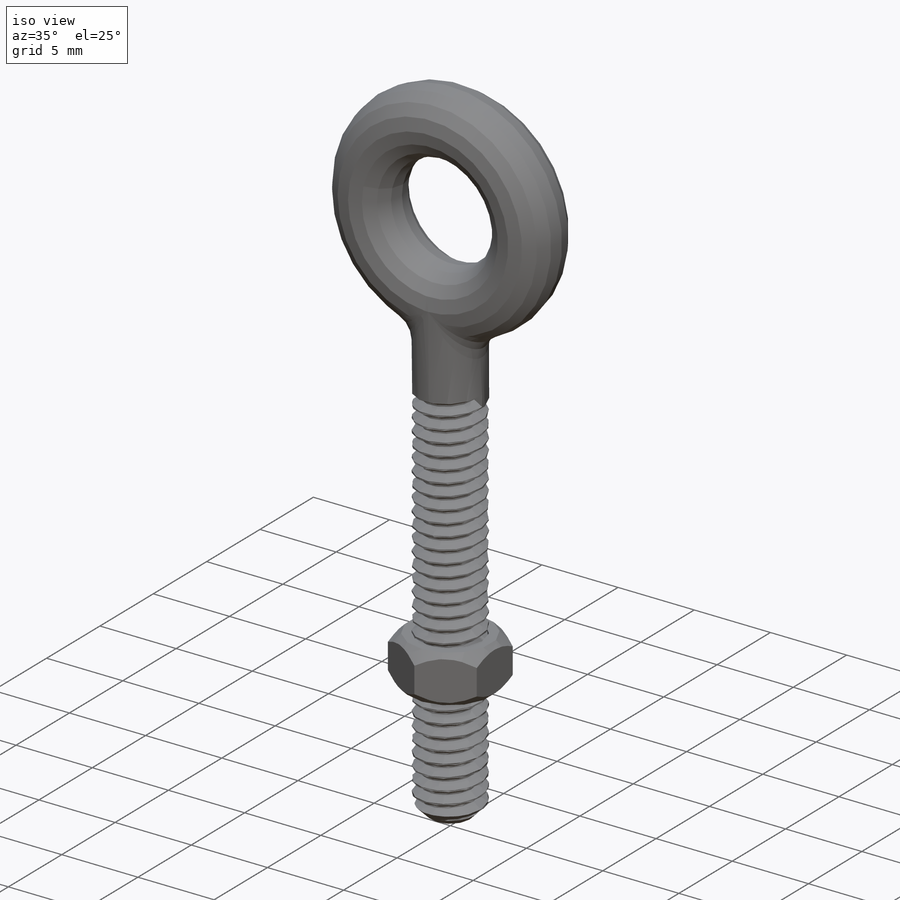
[diagram: iso view]
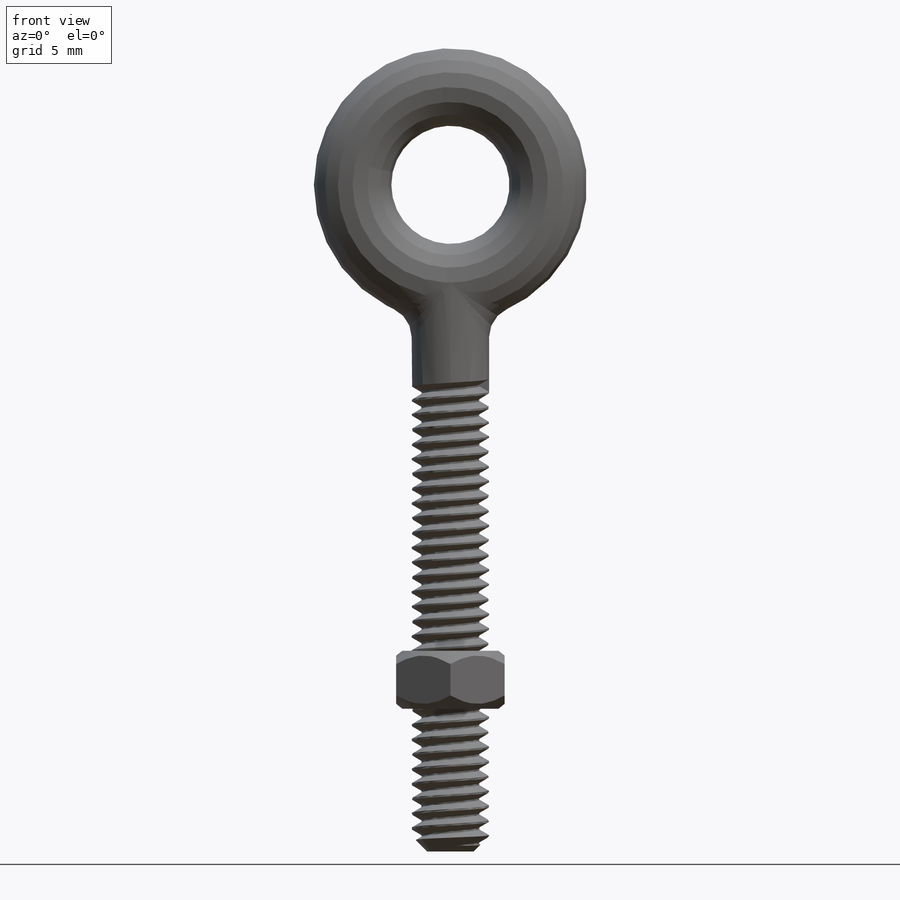
[diagram: front view]
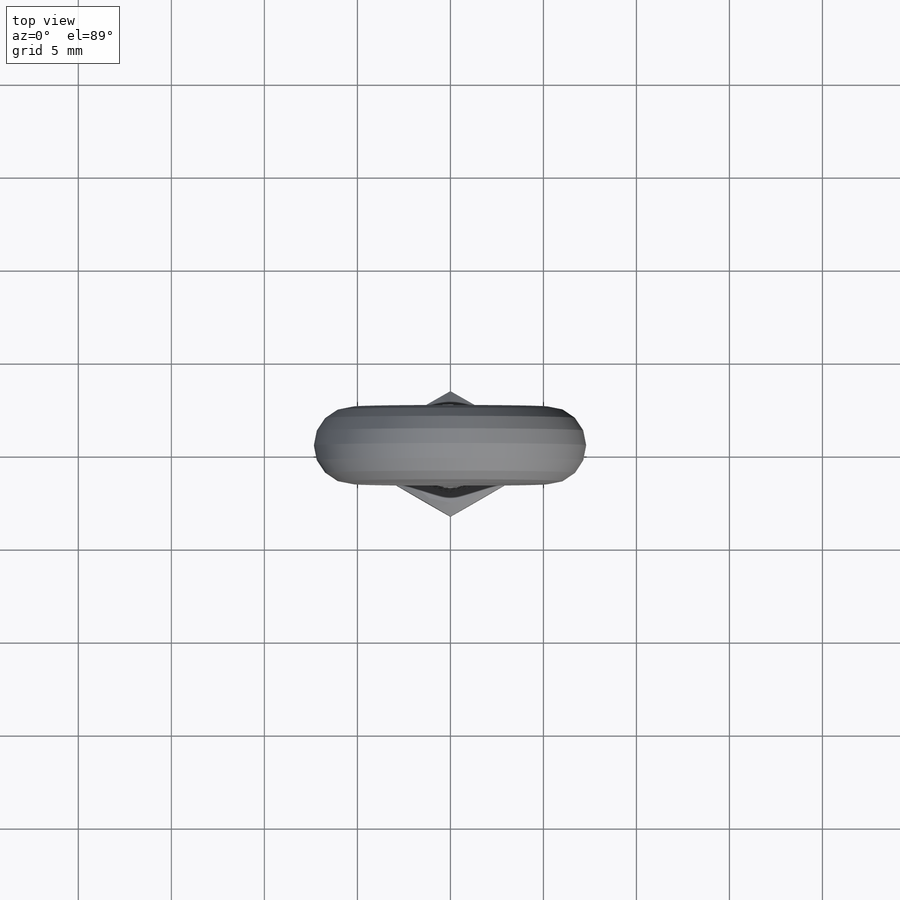
[diagram: top view]
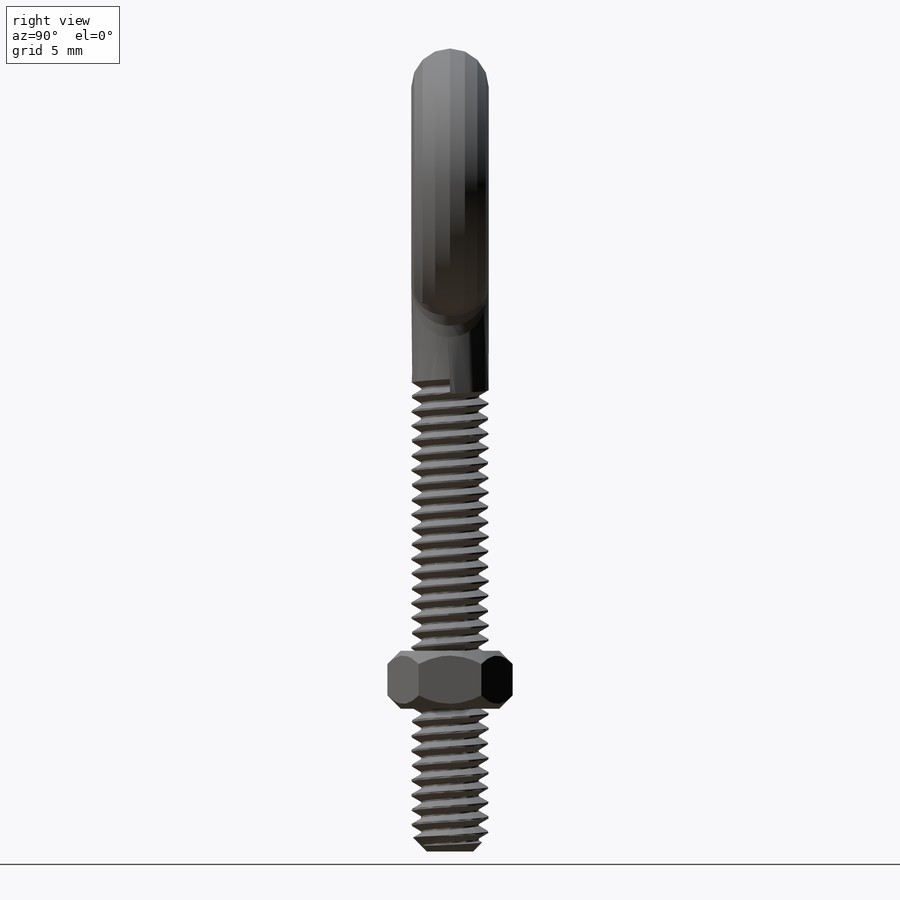
[diagram: right view]
SOLIDWORKS PART (.sldprt)
format: sldprt  version: not decoded by parser v0  size: 546,304 bytes
history: native  units: mm
features: sketch x9, sweep x2, extrude x2, material x1, fillet x1, chamfer x1, helix x1, plane x1, cut_revolve x1 (+12 scaffold rows collapsed)
feature tree (31):
  scaffold x12  (default folders/planes/origin — collapsed)
  material  "Material <not specified>"
  sketch  "Sketch3"  dims[Thread Dia =4.1656mm Supplier Overall Height =43.18mm]
  sketch  "Sketch4"  dims[A =6.35mm]
  sweep  "Sweep4"
  sketch  "Sketch5"  dims[D1=4.1656mm]
  extrude  "Extrude1"  [1 undecoded]
  fillet  "Fillet1"  Radius=1.66624mm
  chamfer  "Chamfer1"  Distance=0.83312mm Angle=45deg
  sketch  "Sketch6"
  helix  "Helix/Spiral1"  Pitch=25.4mm Thread Pitch =0.79375mm
  plane  "Plane1"  Offset=7.676444mm
  sketch  "Sketch10"  dims[D1=~5.83184mm]
  extrude  "Extrude2"  Depth=3.118556mm
  sketch  "Sketch11"  dims[D1=~0.714375mm]
  cut_revolve  "Cut-Revolve1"  Angle=360deg
  sketch  "Sketch7"  dims[c1.D1=~1.060826mm c2.D1=60.0deg c2.D2=~0.099219mm c2.D3=~0.396875mm]
  sweep  "Cut-Sweep1"
  sketch  "Sketch8"  dims[B =28.575mm C =25.4mm D3=4.1656mm]
  sketch  "Sketch9"
decode coverage: 12 of 17 modeling features carry decoded parameters
note: ~ marks probable driven/reference dimensions
note: 1 parameter value undecoded
note: suppression state not decoded; provenance and decode notes live in map.json
